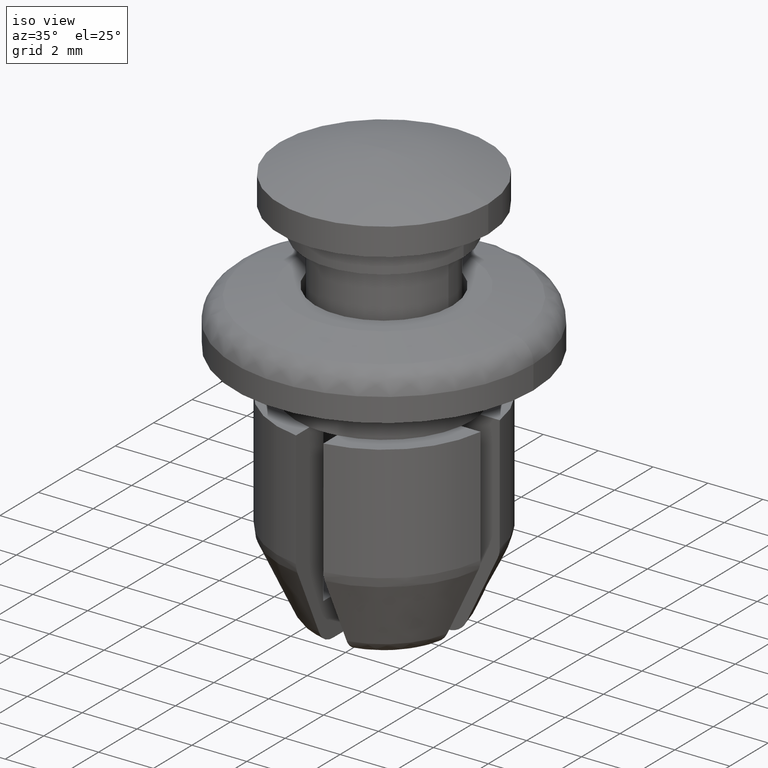
[diagram: clean part render]
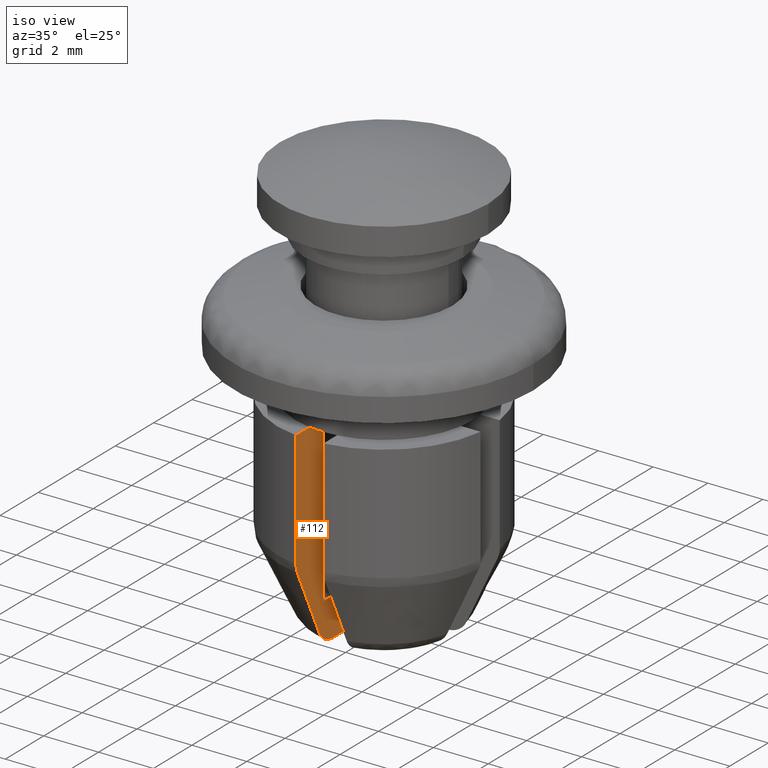
[diagram: same view with one face highlighted and labeled with its STEP entity id]
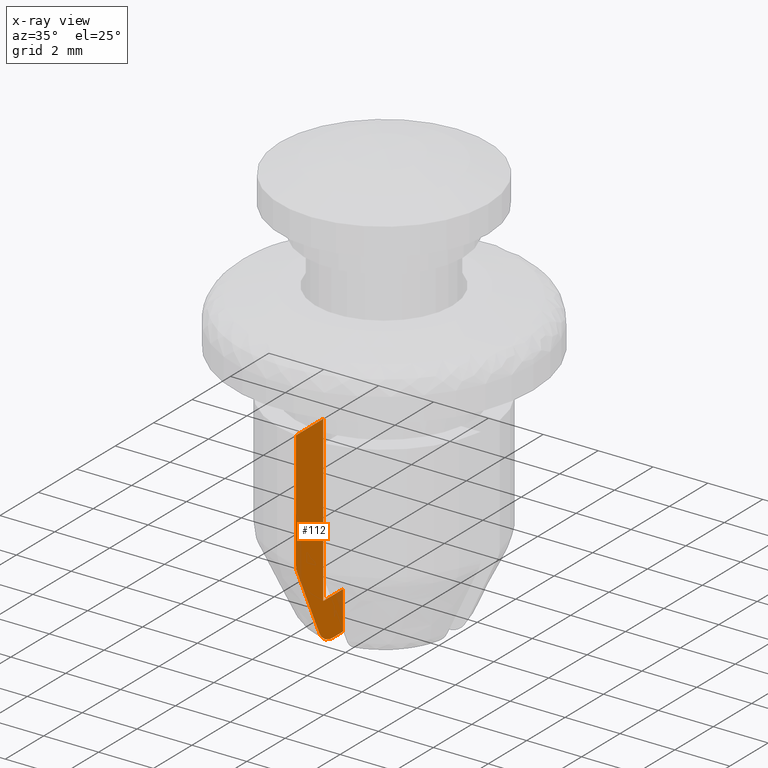
[diagram: x-ray of the same camera — body ghosted, the highlighted face saturated]
A machine part, iso view. The second image highlights one B-rep face of the part: STEP entity #112.
The next image is the same camera in x-ray: the body ghosted, the highlighted face saturated — about 2% of this face is hidden behind the body in this view.
In plain terms, the highlighted planar face has unit normal (1, 0, 0).
Its self-contained STEP definition (entity closure, byte-faithful):
#112=ADVANCED_FACE('',(#192),#191,.T.);
#191=PLANE('',#990);
#192=FACE_OUTER_BOUND('',#991,.T.);
#987=CARTESIAN_POINT('',(-5.00000000000E-01,-4.11317615704E+00,-2.85996999998E+00));
#988=DIRECTION('',(1.00000000000E+00,0.00000000000E+00,0.00000000000E+00));
#989=DIRECTION('',(0.00000000000E+00,0.00000000000E+00,-1.00000000000E+00));
#990=AXIS2_PLACEMENT_3D('',#987,#988,#989);
#991=EDGE_LOOP('',(#1550,#1551,#1552,#1553,#1554,#1555,#1556,#1557,#1558,#1559));
#1550=ORIENTED_EDGE('',*,*,#1938,.F.);
#1551=ORIENTED_EDGE('',*,*,#1939,.F.);
#1552=ORIENTED_EDGE('',*,*,#1940,.F.);
#1553=ORIENTED_EDGE('',*,*,#1941,.F.);
#1554=ORIENTED_EDGE('',*,*,#1942,.F.);
#1555=ORIENTED_EDGE('',*,*,#1943,.F.);
#1556=ORIENTED_EDGE('',*,*,#1944,.F.);
#1557=ORIENTED_EDGE('',*,*,#1945,.T.);
#1558=ORIENTED_EDGE('',*,*,#1946,.T.);
#1559=ORIENTED_EDGE('',*,*,#1947,.T.);
#1938=EDGE_CURVE('',#2132,#2133,#2134,.T.);
#1939=EDGE_CURVE('',#2140,#2132,#2141,.T.);
#1940=EDGE_CURVE('',#2147,#2140,#2148,.T.);
#1941=EDGE_CURVE('',#2154,#2147,#2155,.T.);
#1942=EDGE_CURVE('',#2161,#2154,#2162,.T.);
#1943=EDGE_CURVE('',#2168,#2161,#2169,.T.);
#1944=EDGE_CURVE('',#2175,#2168,#2176,.T.);
#1945=EDGE_CURVE('',#2175,#2182,#2183,.T.);
#1946=EDGE_CURVE('',#2182,#2189,#2190,.T.);
#1947=EDGE_CURVE('',#2189,#2133,#2196,.T.);
#2132=VERTEX_POINT('',#3419);
#2133=VERTEX_POINT('',#3420);
#2134=LINE('',#3421,#3422);
#2140=VERTEX_POINT('',#3424);
#2141=LINE('',#3425,#3426);
#2147=VERTEX_POINT('',#3428);
#2148=LINE('',#3429,#3430);
#2154=VERTEX_POINT('',#3432);
#2155=LINE('',#3433,#3434);
#2161=VERTEX_POINT('',#3436);
#2162=(BOUNDED_CURVE() B_SPLINE_CURVE(3,(#3437,#3438,#3439,#3440,#3441,#3442),.UNSPECIFIED.,.F.,.F.) B_SPLINE_CURVE_WITH_KNOTS((4,2,4),(4.64821554045E-03,4.81718217281E-03,4.98614880518E-03),.UNSPECIFIED.) CURVE() GEOMETRIC_REPRESENTATION_ITEM() RATIONAL_B_SPLINE_CURVE((1.00000000000E+00,1.00000000000E+00,1.00000000000E+00,1.00000000000E+00,1.00000000000E+00,1.00000000000E+00)) REPRESENTATION_ITEM('') );
#2168=VERTEX_POINT('',#3443);
#2169=(BOUNDED_CURVE() B_SPLINE_CURVE(3,(#3444,#3445,#3446,#3447),.UNSPECIFIED.,.F.,.F.) B_SPLINE_CURVE_WITH_KNOTS((4,4),(3.31531142691E-03,5.97512270310E-03),.UNSPECIFIED.) CURVE() GEOMETRIC_REPRESENTATION_ITEM() RATIONAL_B_SPLINE_CURVE((1.00000000000E+00,1.00000000000E+00,1.00000000000E+00,1.00000000000E+00)) REPRESENTATION_ITEM('') );
#2175=VERTEX_POINT('',#3448);
#2176=(BOUNDED_CURVE() B_SPLINE_CURVE(3,(#3449,#3450,#3451,#3452,#3453,#3454),.UNSPECIFIED.,.F.,.F.) B_SPLINE_CURVE_WITH_KNOTS((4,2,4),(4.15441141789E-03,4.58452043412E-03,5.01464759113E-03),.UNSPECIFIED.) CURVE() GEOMETRIC_REPRESENTATION_ITEM() RATIONAL_B_SPLINE_CURVE((1.00000000000E+00,1.00000000000E+00,1.00000000000E+00,1.00000000000E+00,1.00000000000E+00,1.00000000000E+00)) REPRESENTATION_ITEM('') );
#2182=VERTEX_POINT('',#3455);
#2183=LINE('',#3456,#3457);
#2189=VERTEX_POINT('',#3459);
#2190=LINE('',#3460,#3461);
#2196=LINE('',#3463,#3464);
#3419=CARTESIAN_POINT('',(-5.00000000000E-01,-2.44948974278E+00,-3.60000000000E+00));
#3420=CARTESIAN_POINT('',(-5.00000000000E-01,-2.44948974278E+00,-9.60030000000E+00));
#3421=CARTESIAN_POINT('',(-5.00000000000E-01,-2.44948974278E+00,-3.60000000000E+00));
#3422=VECTOR('',#3423,6.00030000000E+00);
#3423=DIRECTION('',(0.00000000000E+00,0.00000000000E+00,-1.00000000000E+00));
#3424=CARTESIAN_POINT('',(-5.00000000000E-01,-3.16069612586E+00,-3.60000000000E+00));
#3425=CARTESIAN_POINT('',(-5.00000000000E-01,-3.16069612586E+00,-3.60000000000E+00));
#3426=VECTOR('',#3427,7.11206383073E-01);
#3427=DIRECTION('',(0.00000000000E+00,1.00000000000E+00,0.00000000000E+00));
#3428=CARTESIAN_POINT('',(-5.00000000000E-01,-3.86781592116E+00,-3.60000000000E+00));
#3429=CARTESIAN_POINT('',(-5.00000000000E-01,-3.86781592116E+00,-3.60000000000E+00));
#3430=VECTOR('',#3431,7.07119795307E-01);
#3431=DIRECTION('',(0.00000000000E+00,1.00000000000E+00,0.00000000000E+00));
#3432=CARTESIAN_POINT('',(-5.00000000000E-01,-3.86781592116E+00,-7.83400000000E+00));
#3433=CARTESIAN_POINT('',(-5.00000000000E-01,-3.86781592116E+00,-7.83400000000E+00));
#3434=VECTOR('',#3435,4.23400000000E+00);
#3435=DIRECTION('',(0.00000000000E+00,0.00000000000E+00,1.00000000000E+00));
#3436=CARTESIAN_POINT('',(-5.00000000000E-01,-3.79146062763E+00,-8.16238480092E+00));
#3437=CARTESIAN_POINT('',(-5.00000000000E-01,-3.79146062763E+00,-8.16238480092E+00));
#3438=CARTESIAN_POINT('',(-5.00000000000E-01,-3.81650764745E+00,-8.11139608744E+00));
#3439=CARTESIAN_POINT('',(-5.00000000000E-01,-3.83578287035E+00,-8.05719391402E+00));
#3440=CARTESIAN_POINT('',(-5.00000000000E-01,-3.86127975215E+00,-7.94738455117E+00));
#3441=CARTESIAN_POINT('',(-5.00000000000E-01,-3.86781592116E+00,-7.89094788037E+00));
#3442=CARTESIAN_POINT('',(-5.00000000000E-01,-3.86781592116E+00,-7.83400000000E+00));
#3443=CARTESIAN_POINT('',(-5.00000000000E-01,-2.65533500711E+00,-1.05674000000E+01));
#3444=CARTESIAN_POINT('',(-5.00000000000E-01,-2.65533500711E+00,-1.05674000000E+01));
#3445=CARTESIAN_POINT('',(-5.00000000000E-01,-3.03564446289E+00,-9.76648789093E+00));
#3446=CARTESIAN_POINT('',(-5.00000000000E-01,-3.41387625680E+00,-8.96458691741E+00));
#3447=CARTESIAN_POINT('',(-5.00000000000E-01,-3.79146062763E+00,-8.16238480092E+00));
#3448=CARTESIAN_POINT('',(-5.00004366201E-01,-1.95950752863E+00,-1.10003000000E+01));
#3449=CARTESIAN_POINT('',(-5.00000000000E-01,-1.95950752863E+00,-1.10003000002E+01));
#3450=CARTESIAN_POINT('',(-5.00000000000E-01,-2.10306461000E+00,-1.10002966764E+01));
#3451=CARTESIAN_POINT('',(-5.00000000000E-01,-2.24645496874E+00,-1.09608906252E+01));
#3452=CARTESIAN_POINT('',(-5.00000000000E-01,-2.49280838102E+00,-1.08091887810E+01));
#3453=CARTESIAN_POINT('',(-5.00000000000E-01,-2.59311273103E+00,-1.06984369059E+01));
#3454=CARTESIAN_POINT('',(-5.00000000000E-01,-2.65533500711E+00,-1.05674000000E+01));
#3455=CARTESIAN_POINT('',(-5.00000000000E-01,-1.41421356237E+00,-1.10003000000E+01));
#3456=CARTESIAN_POINT('',(-5.00000000000E-01,-1.95950752863E+00,-1.10003000000E+01));
#3457=VECTOR('',#3458,5.45293966253E-01);
#3458=DIRECTION('',(0.00000000000E+00,1.00000000000E+00,0.00000000000E+00));
#3459=CARTESIAN_POINT('',(-5.00000000000E-01,-1.41421356237E+00,-9.60030000000E+00));
#3460=CARTESIAN_POINT('',(-5.00000000000E-01,-1.41421356237E+00,-1.10003000000E+01));
#3461=VECTOR('',#3462,1.40000000000E+00);
#3462=DIRECTION('',(0.00000000000E+00,0.00000000000E+00,1.00000000000E+00));
#3463=CARTESIAN_POINT('',(-5.00000000000E-01,-1.41421356237E+00,-9.60030000000E+00));
#3464=VECTOR('',#3465,1.03527618041E+00);
#3465=DIRECTION('',(0.00000000000E+00,-1.00000000000E+00,0.00000000000E+00));